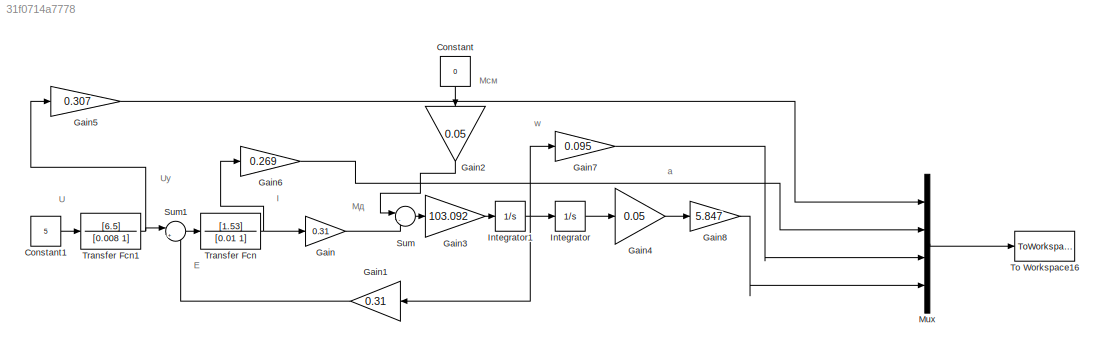
MODEL slx_31f0714a7778
KIND model
BLOCK [Constant] Constant
  Value = 0
BLOCK [Constant] Constant1
  Value = 5
BLOCK [Gain] Gain
  Gain = 0.31
  OutDataTypeStr = Inherit: Inherit via internal rule
  ParamDataTypeStr = Inherit: Inherit via internal rule
  SaturateOnIntegerOverflow = off
BLOCK [Gain] Gain1
  Gain = 0.31
  OutDataTypeStr = Inherit: Inherit via internal rule
  ParamDataTypeStr = Inherit: Inherit via internal rule
  SaturateOnIntegerOverflow = off
BLOCK [Gain] Gain2
  Gain = 0.05
  OutDataTypeStr = Inherit: Inherit via internal rule
  ParamDataTypeStr = Inherit: Inherit via internal rule
  SaturateOnIntegerOverflow = off
BLOCK [Gain] Gain3
  Gain = 103.092
  OutDataTypeStr = Inherit: Inherit via internal rule
  ParamDataTypeStr = Inherit: Inherit via internal rule
  SaturateOnIntegerOverflow = off
BLOCK [Gain] Gain4
  Gain = 0.05
  OutDataTypeStr = Inherit: Inherit via internal rule
  ParamDataTypeStr = Inherit: Inherit via internal rule
  SaturateOnIntegerOverflow = off
BLOCK [Gain] Gain5
  Gain = 0.307
  OutDataTypeStr = Inherit: Inherit via internal rule
  ParamDataTypeStr = Inherit: Inherit via internal rule
  SaturateOnIntegerOverflow = off
BLOCK [Gain] Gain6
  Gain = 0.269
  OutDataTypeStr = Inherit: Inherit via internal rule
  ParamDataTypeStr = Inherit: Inherit via internal rule
  SaturateOnIntegerOverflow = off
BLOCK [Gain] Gain7
  Gain = 0.095
  OutDataTypeStr = Inherit: Inherit via internal rule
  ParamDataTypeStr = Inherit: Inherit via internal rule
  SaturateOnIntegerOverflow = off
BLOCK [Gain] Gain8
  Gain = 5.847
  OutDataTypeStr = Inherit: Inherit via internal rule
  ParamDataTypeStr = Inherit: Inherit via internal rule
  SaturateOnIntegerOverflow = off
BLOCK [Integrator] Integrator
  Ports = [1, 1]
BLOCK [Integrator] Integrator1
  Ports = [1, 1]
BLOCK [Mux] Mux
  DisplayOption = bar
  Ports = [4, 1]
BLOCK [Sum] Sum
  IconShape = round
  InputSameDT = off
  Inputs = |-+
  OutDataTypeStr = Inherit: Inherit via internal rule
  Ports = [2, 1]
  SaturateOnIntegerOverflow = off
BLOCK [Sum] Sum1
  IconShape = round
  InputSameDT = off
  Inputs = |+-
  OutDataTypeStr = Inherit: Inherit via internal rule
  Ports = [2, 1]
  SaturateOnIntegerOverflow = off
BLOCK [ToWorkspace] To Workspace16
  FixptAsFi = on
  MaxDataPoints = inf
  Ports = [1]
  SampleTime = -1
  Save2DSignal = 3-D array (concatenate along third dimension)
  SaveFormat = Timeseries
  VariableName = simout
BLOCK [TransferFcn] Transfer Fcn
  Denominator = [0.01 1]
  Numerator = [1.53]
BLOCK [TransferFcn] Transfer Fcn1
  Denominator = [0.008 1]
  Numerator = [6.5]
ANNOTATION (root): E
ANNOTATION (root): I
ANNOTATION (root): Mсм
ANNOTATION (root): U
ANNOTATION (root): Uy
ANNOTATION (root): a
ANNOTATION (root): w
ANNOTATION (root): Мд
LINE Constant1:1 -> Transfer Fcn1:1
LINE Constant:1 -> Gain2:1
LINE Gain1:1 -> Sum1:2
LINE Gain2:1 -> Sum:1
LINE Gain3:1 -> Integrator1:1
LINE Gain4:1 -> Gain8:1
LINE Gain5:1 -> Mux:1
LINE Gain6:1 -> Mux:2
LINE Gain7:1 -> Mux:3
LINE Gain8:1 -> Mux:4
LINE Gain:1 -> Sum:2
NET Integrator1:1 -> Gain1:1, Gain7:1, Integrator:1
LINE Integrator:1 -> Gain4:1
LINE Mux:1 -> To Workspace16:1
LINE Sum1:1 -> Transfer Fcn:1
LINE Sum:1 -> Gain3:1
NET Transfer Fcn1:1 -> Gain5:1, Sum1:1
NET Transfer Fcn:1 -> Gain6:1, Gain:1
note: NET lines group one-source signal fan-out (src -> all destinations, sorted); 1:1 wires keep LINE
